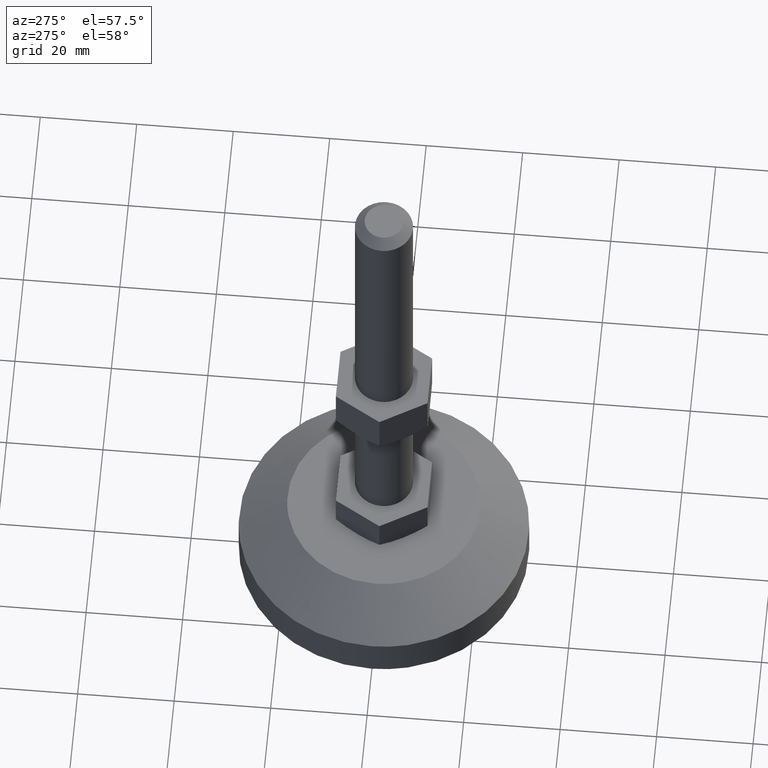
[diagram: clean part render]
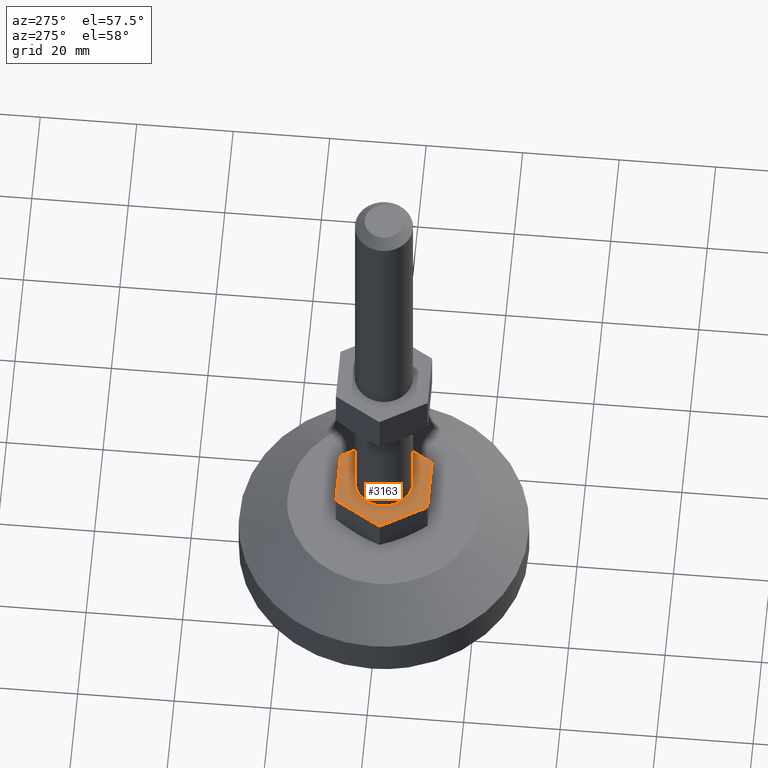
[diagram: same view with one face highlighted and labeled with its STEP entity id]
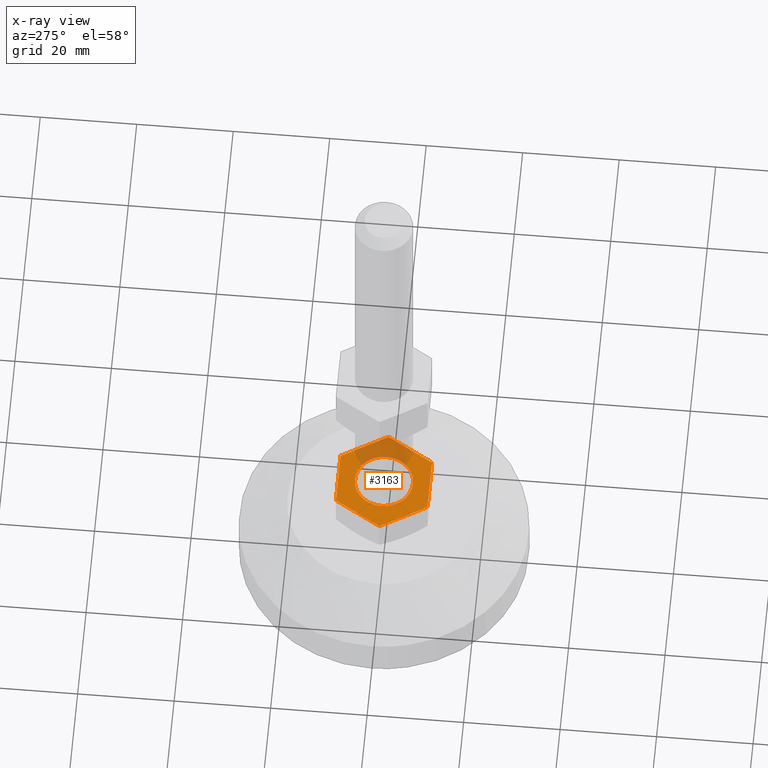
[diagram: x-ray of the same camera — body ghosted, the highlighted face saturated]
A machine part, auxiliary view. The second image highlights one B-rep face of the part: STEP entity #3163.
The next image is the same camera in x-ray: the body ghosted, the highlighted face saturated — about 23% of this face is hidden behind the body in this view.
In plain terms, the highlighted face is a freeform B-spline surface patch.
Its self-contained STEP definition (entity closure, byte-faithful):
#2880=CARTESIAN_POINT('',(0.366291237335024,-5.988808790523502,25.000000000000011));
#2881=VERTEX_POINT('',#2880);
#2882=CARTESIAN_POINT('',(-6.0,0.0,25.0));
#2883=VERTEX_POINT('',#2882);
#2884=CARTESIAN_POINT('',(0.366291237335024,-5.988808790523503,25.000000000000004));
#2885=CARTESIAN_POINT('',(0.183316579854651,-6.0,25.000000000000004));
#2886=CARTESIAN_POINT('',(0.0,-6.0,25.0));
#2887=CARTESIAN_POINT('',(-6.0,-6.0,25.0));
#2888=CARTESIAN_POINT('',(-6.0,0.0,25.0));
#2896=(BOUNDED_CURVE()B_SPLINE_CURVE(2,(#2884,#2885,#2886,#2887,#2888),.UNSPECIFIED.,.F.,.U.)B_SPLINE_CURVE_WITH_KNOTS((3,2,3),(0.239332962238341,0.250000000000000,0.500000000000000),.UNSPECIFIED.)CURVE()GEOMETRIC_REPRESENTATION_ITEM()RATIONAL_B_SPLINE_CURVE((0.976072041665429,0.987502787899133,1.0,0.707106781186548,1.0))REPRESENTATION_ITEM(''));
#2897=EDGE_CURVE('',#2881,#2883,#2896,.T.);
#2907=CARTESIAN_POINT('',(-0.366291237335024,5.988808790523502,25.0));
#2908=VERTEX_POINT('',#2907);
#2914=CARTESIAN_POINT('',(-6.0,0.0,25.0));
#2915=CARTESIAN_POINT('',(-6.0,5.644236401315308,24.999999999999996));
#2916=CARTESIAN_POINT('',(-0.366291237335024,5.988808790523503,25.000000000000004));
#2924=(BOUNDED_CURVE()B_SPLINE_CURVE(2,(#2914,#2915,#2916),.UNSPECIFIED.,.F.,.U.)B_SPLINE_CURVE_WITH_KNOTS((3,3),(0.500000000000000,0.739332962238341),.UNSPECIFIED.)CURVE()GEOMETRIC_REPRESENTATION_ITEM()RATIONAL_B_SPLINE_CURVE((1.0,0.719603993287415,0.976072041665429))REPRESENTATION_ITEM(''));
#2925=EDGE_CURVE('',#2883,#2908,#2924,.T.);
#2948=CARTESIAN_POINT('',(6.0,0.0,25.0));
#2949=VERTEX_POINT('',#2948);
#2950=CARTESIAN_POINT('',(6.0,0.0,25.0));
#2951=CARTESIAN_POINT('',(6.0,-5.644236401315308,24.999999999999996));
#2952=CARTESIAN_POINT('',(0.366291237335024,-5.988808790523503,25.000000000000004));
#2960=(BOUNDED_CURVE()B_SPLINE_CURVE(2,(#2950,#2951,#2952),.UNSPECIFIED.,.F.,.U.)B_SPLINE_CURVE_WITH_KNOTS((3,3),(0.0,0.239332962238341),.UNSPECIFIED.)CURVE()GEOMETRIC_REPRESENTATION_ITEM()RATIONAL_B_SPLINE_CURVE((1.0,0.719603993287415,0.976072041665429))REPRESENTATION_ITEM(''));
#2961=EDGE_CURVE('',#2949,#2881,#2960,.T.);
#2963=CARTESIAN_POINT('',(-0.366291237335024,5.988808790523503,25.000000000000004));
#2964=CARTESIAN_POINT('',(-0.183316579854651,6.0,25.000000000000004));
#2965=CARTESIAN_POINT('',(0.0,6.0,25.0));
#2966=CARTESIAN_POINT('',(6.0,6.0,25.0));
#2967=CARTESIAN_POINT('',(6.0,0.0,25.0));
#2975=(BOUNDED_CURVE()B_SPLINE_CURVE(2,(#2963,#2964,#2965,#2966,#2967),.UNSPECIFIED.,.F.,.U.)B_SPLINE_CURVE_WITH_KNOTS((3,2,3),(0.739332962238341,0.750000000000000,1.0),.UNSPECIFIED.)CURVE()GEOMETRIC_REPRESENTATION_ITEM()RATIONAL_B_SPLINE_CURVE((0.976072041665429,0.987502787899133,1.0,0.707106781186548,1.0))REPRESENTATION_ITEM(''));
#2976=EDGE_CURVE('',#2908,#2949,#2975,.T.);
#3108=CARTESIAN_POINT('',(-12.065523491977361,-10.449049963174200,25.0));
#3109=CARTESIAN_POINT('',(12.065524080435511,-10.449049963174200,25.0));
#3110=CARTESIAN_POINT('',(-12.065523491977361,10.449050472794140,25.0));
#3111=CARTESIAN_POINT('',(12.065524080435511,10.449050472794140,25.0));
#3112=B_SPLINE_SURFACE_WITH_KNOTS('',1,1,((#3108,#3110),(#3109,#3111)),.UNSPECIFIED.,.F.,.F.,.U.,(2,2),(2,2),(0.0,24.131047572412871),(0.0,20.898100435968342),.UNSPECIFIED.);
#3113=CARTESIAN_POINT('',(-5.484827000000000,-9.499999999999890,25.0));
#3114=VERTEX_POINT('',#3113);
#3115=CARTESIAN_POINT('',(-10.969654999999999,0.0,25.0));
#3116=VERTEX_POINT('',#3115);
#3117=CARTESIAN_POINT('',(-5.484827000000000,-9.499999999999890,25.0));
#3118=CARTESIAN_POINT('',(-10.969654999999999,0.0,25.0));
#3119=QUASI_UNIFORM_CURVE('',1,(#3117,#3118),.UNSPECIFIED.,.F.,.U.);
#3120=EDGE_CURVE('',#3114,#3116,#3119,.T.);
#3121=ORIENTED_EDGE('',*,*,#3120,.F.);
#3122=CARTESIAN_POINT('',(5.484827999999999,-9.499999999999890,25.0));
#3123=VERTEX_POINT('',#3122);
#3124=CARTESIAN_POINT('',(5.484827999999999,-9.499999999999890,25.0));
#3125=CARTESIAN_POINT('',(-5.484827000000000,-9.499999999999890,25.0));
#3126=QUASI_UNIFORM_CURVE('',1,(#3124,#3125),.UNSPECIFIED.,.F.,.U.);
#3127=EDGE_CURVE('',#3123,#3114,#3126,.T.);
#3128=ORIENTED_EDGE('',*,*,#3127,.F.);
#3129=CARTESIAN_POINT('',(10.969654999999999,0.0,25.0));
#3130=VERTEX_POINT('',#3129);
#3131=CARTESIAN_POINT('',(10.969654999999999,0.0,25.0));
#3132=CARTESIAN_POINT('',(5.484827999999999,-9.499999999999890,25.0));
#3133=QUASI_UNIFORM_CURVE('',1,(#3131,#3132),.UNSPECIFIED.,.F.,.U.);
#3134=EDGE_CURVE('',#3130,#3123,#3133,.T.);
#3135=ORIENTED_EDGE('',*,*,#3134,.F.);
#3136=CARTESIAN_POINT('',(5.484827999999999,9.500000000000108,25.0));
#3137=VERTEX_POINT('',#3136);
#3138=CARTESIAN_POINT('',(5.484827999999999,9.500000000000108,25.0));
#3139=CARTESIAN_POINT('',(10.969654999999999,0.0,25.0));
#3140=QUASI_UNIFORM_CURVE('',1,(#3138,#3139),.UNSPECIFIED.,.F.,.U.);
#3141=EDGE_CURVE('',#3137,#3130,#3140,.T.);
#3142=ORIENTED_EDGE('',*,*,#3141,.F.);
#3143=CARTESIAN_POINT('',(-5.484827000000000,9.500000000000108,25.0));
#3144=VERTEX_POINT('',#3143);
#3145=CARTESIAN_POINT('',(-5.484827000000000,9.500000000000108,25.0));
#3146=CARTESIAN_POINT('',(5.484827999999999,9.500000000000108,25.0));
#3147=QUASI_UNIFORM_CURVE('',1,(#3145,#3146),.UNSPECIFIED.,.F.,.U.);
#3148=EDGE_CURVE('',#3144,#3137,#3147,.T.);
#3149=ORIENTED_EDGE('',*,*,#3148,.F.);
#3150=CARTESIAN_POINT('',(-10.969654999999999,0.0,25.0));
#3151=CARTESIAN_POINT('',(-5.484827000000000,9.500000000000108,25.0));
#3152=QUASI_UNIFORM_CURVE('',1,(#3150,#3151),.UNSPECIFIED.,.F.,.U.);
#3153=EDGE_CURVE('',#3116,#3144,#3152,.T.);
#3154=ORIENTED_EDGE('',*,*,#3153,.F.);
#3155=EDGE_LOOP('',(#3121,#3128,#3135,#3142,#3149,#3154));
#3156=FACE_OUTER_BOUND('',#3155,.T.);
#3157=ORIENTED_EDGE('',*,*,#2925,.T.);
#3158=ORIENTED_EDGE('',*,*,#2976,.T.);
#3159=ORIENTED_EDGE('',*,*,#2961,.T.);
#3160=ORIENTED_EDGE('',*,*,#2897,.T.);
#3161=EDGE_LOOP('',(#3157,#3158,#3159,#3160));
#3162=FACE_BOUND('',#3161,.T.);
#3163=ADVANCED_FACE('',(#3156,#3162),#3112,.T.);